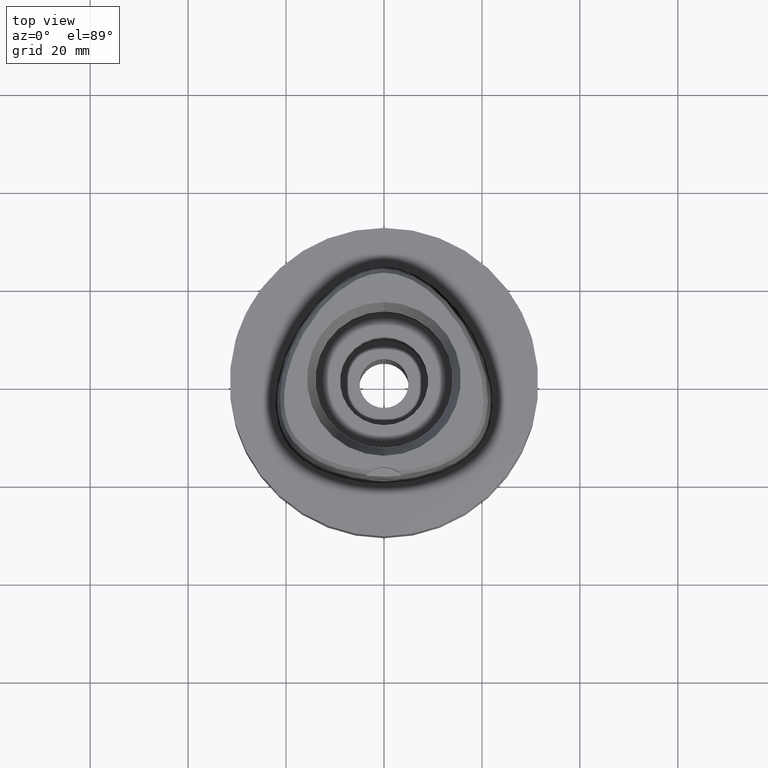
[diagram: clean part render]
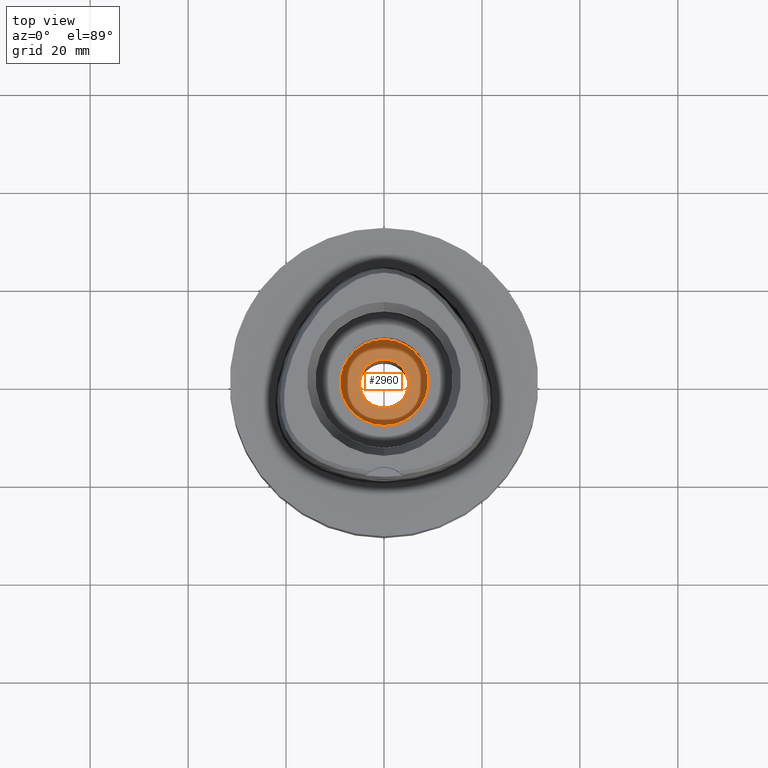
[diagram: same view with one face highlighted and labeled with its STEP entity id]
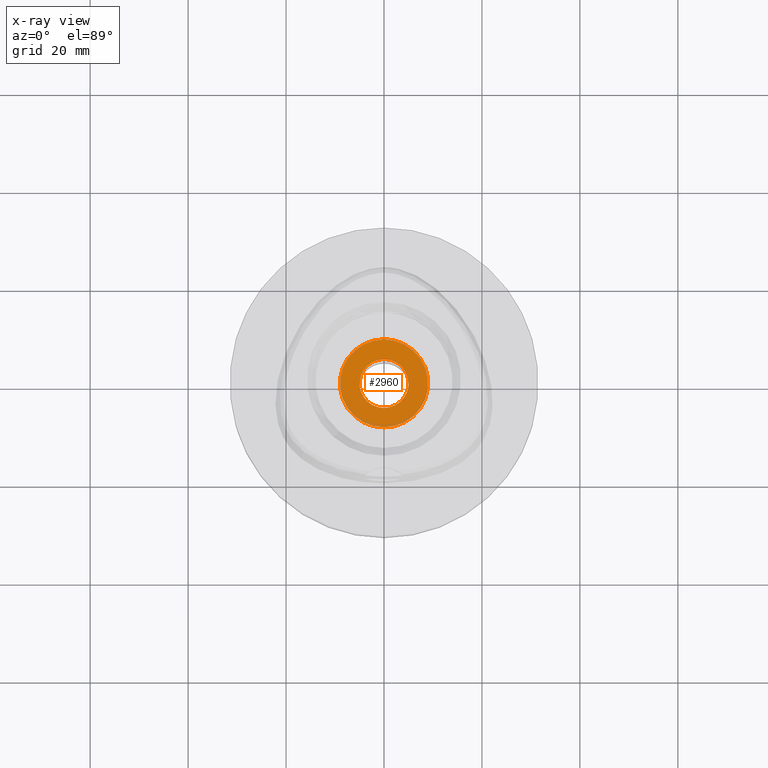
[diagram: x-ray of the same camera — body ghosted, the highlighted face saturated]
A machine part, top view. The second image highlights one B-rep face of the part: STEP entity #2960.
The next image is the same camera in x-ray: the body ghosted, the highlighted face saturated — about 5% of this face is hidden behind the body in this view.
In plain terms, the highlighted planar face has unit normal (0, 0, -1).
Its self-contained STEP definition (entity closure, byte-faithful):
#801=CARTESIAN_POINT('',(0.E0,0.E0,-1.6E1));
#802=DIRECTION('',(0.E0,0.E0,-1.E0));
#803=DIRECTION('',(0.E0,-1.E0,0.E0));
#804=AXIS2_PLACEMENT_3D('',#801,#802,#803);
#809=CARTESIAN_POINT('',(0.E0,0.E0,-1.6E1));
#810=DIRECTION('',(0.E0,0.E0,-1.E0));
#811=DIRECTION('',(0.E0,1.E0,0.E0));
#812=AXIS2_PLACEMENT_3D('',#809,#810,#811);
#817=CARTESIAN_POINT('',(0.E0,1.274857317912E-14,-1.6E1));
#818=DIRECTION('',(0.E0,0.E0,1.E0));
#819=DIRECTION('',(0.E0,-1.E0,0.E0));
#820=AXIS2_PLACEMENT_3D('',#817,#818,#819);
#825=CARTESIAN_POINT('',(0.E0,1.274857317912E-14,-1.6E1));
#826=DIRECTION('',(0.E0,0.E0,1.E0));
#827=DIRECTION('',(0.E0,1.E0,0.E0));
#828=AXIS2_PLACEMENT_3D('',#825,#826,#827);
#1822=CARTESIAN_POINT('',(0.E0,5.E0,-1.6E1));
#1823=VERTEX_POINT('',#1822);
#1824=CARTESIAN_POINT('',(0.E0,-5.E0,-1.6E1));
#1825=VERTEX_POINT('',#1824);
#1826=CARTESIAN_POINT('',(0.E0,-9.E0,-1.6E1));
#1827=CARTESIAN_POINT('',(0.E0,9.E0,-1.6E1));
#1828=VERTEX_POINT('',#1826);
#1829=VERTEX_POINT('',#1827);
#2945=CARTESIAN_POINT('',(0.E0,1.028703311284E-14,-1.6E1));
#2946=DIRECTION('',(0.E0,0.E0,-1.E0));
#2947=DIRECTION('',(0.E0,-1.E0,0.E0));
#2948=AXIS2_PLACEMENT_3D('',#2945,#2946,#2947);
#2949=PLANE('',#2948);
#2951=ORIENTED_EDGE('',*,*,#2950,.T.);
#2953=ORIENTED_EDGE('',*,*,#2952,.T.);
#2954=EDGE_LOOP('',(#2951,#2953));
#2955=FACE_OUTER_BOUND('',#2954,.F.);
#2956=ORIENTED_EDGE('',*,*,#2938,.T.);
#2957=ORIENTED_EDGE('',*,*,#2927,.T.);
#2958=EDGE_LOOP('',(#2956,#2957));
#2959=FACE_BOUND('',#2958,.F.);
#805=CIRCLE('',#804,9.E0);
#813=CIRCLE('',#812,9.E0);
#821=CIRCLE('',#820,5.E0);
#829=CIRCLE('',#828,5.E0);
#2927=EDGE_CURVE('',#1823,#1825,#829,.T.);
#2938=EDGE_CURVE('',#1825,#1823,#821,.T.);
#2950=EDGE_CURVE('',#1828,#1829,#805,.T.);
#2952=EDGE_CURVE('',#1829,#1828,#813,.T.);
#2960=ADVANCED_FACE('',(#2955,#2959),#2949,.F.);